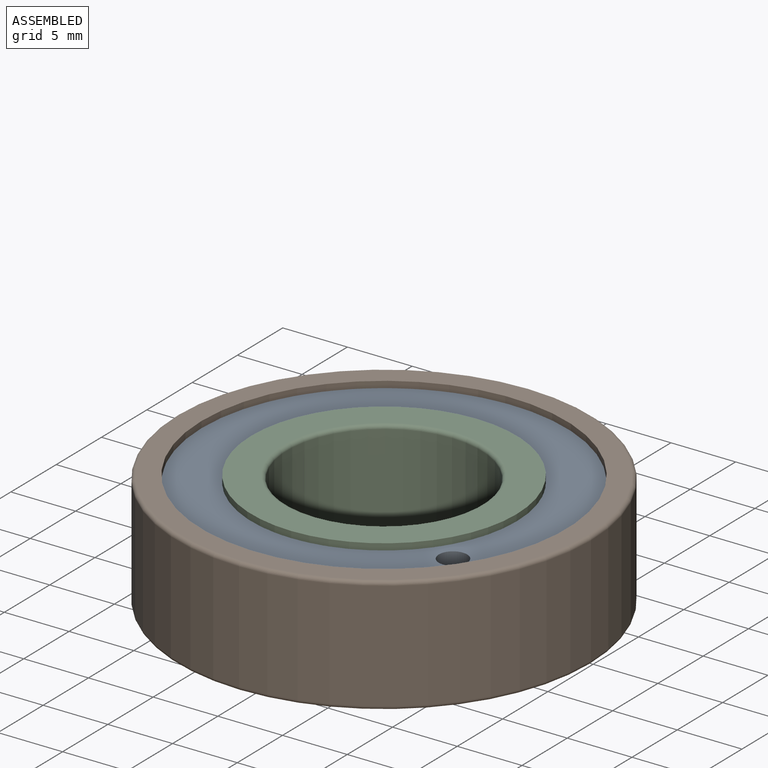
[diagram: assembled view]
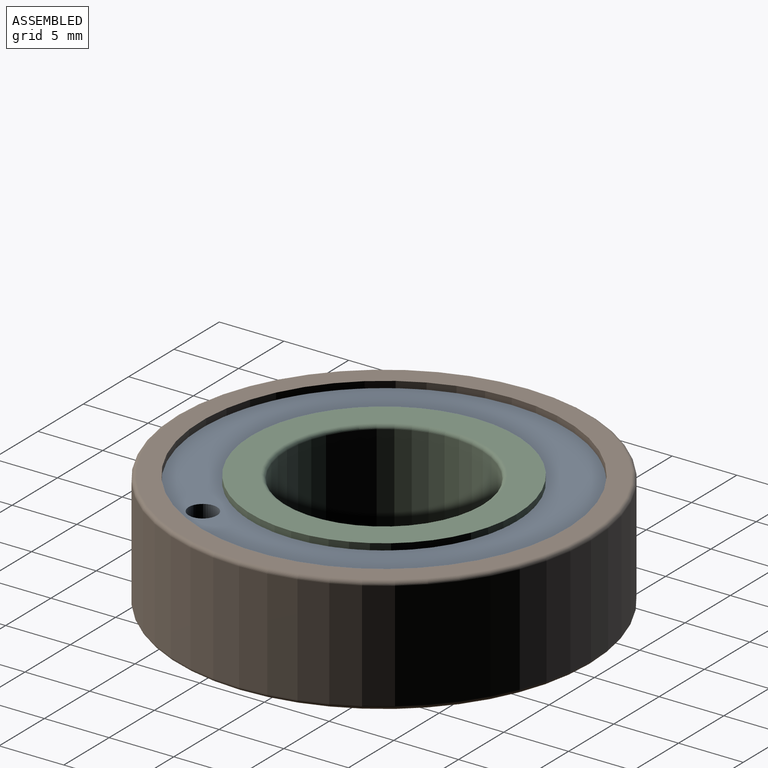
[diagram: assembled view, second angle]
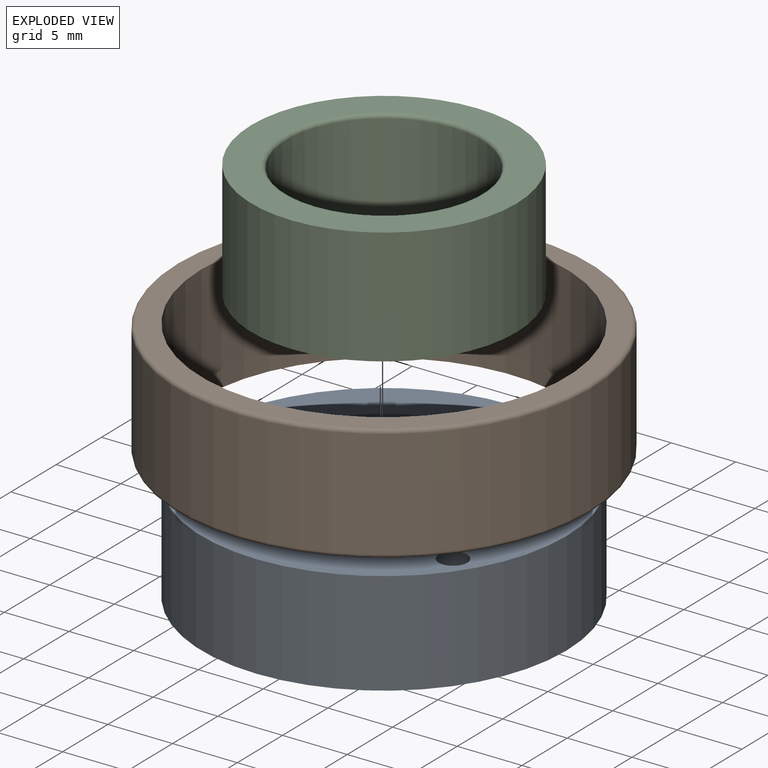
[diagram: exploded view]
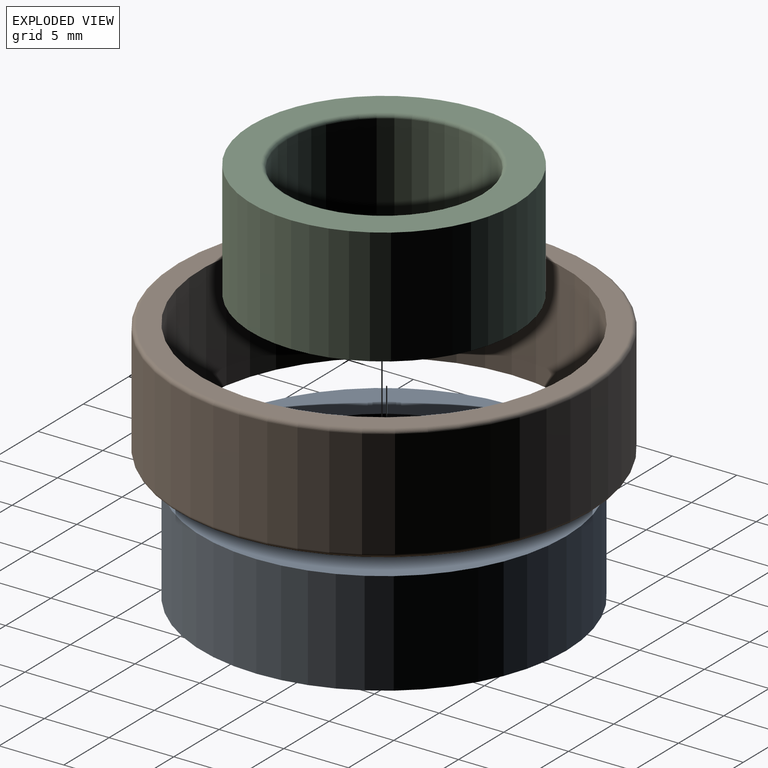
[diagram: exploded view, second angle]
ASSEMBLY  parts=3 mates=2
PART A: 5 faces, bbox 28.2x28.2x8 mm
  f0: cylinder r=10.25mm len=20.5mm, axis (0,0,-1), area 515.2mm2, adj f2,f3
  f1: cylinder r=14.1mm len=28.2mm, axis (0,0,-1), area 708.7mm2, adj f2,f3
  f2: plane 28.2x28.2mm, normal (0,0,1), area 290.8mm2, adj f0,f1,f4
  f3: plane 28.2x28.2mm, normal (0,0,-1), area 290.8mm2, adj f0,f1,f4
  f4: cylinder r=1.09mm len=8mm, axis (0,0,1), area 55mm2, adj f2,f3
PART B: 6 faces, bbox 34.6x34.6x9 mm
  f0: cylinder r=14.1mm len=28.2mm, axis (0,0,-1), area 797.3mm2, adj f2,f3
  f1: cylinder r=16mm len=32mm, axis (0,0,-1), area 844.5mm2, adj f4,f5
  f2: plane 31.4x31.4mm, normal (0,0,1), area 149.8mm2, adj f0,f5
  f3: plane 31.4x31.4mm, normal (0,0,-1), area 149.8mm2, adj f0,f4
  f4: torus R=15.7mm, axis (0,0,1), area 47.1mm2, adj f1,f3
  f5: torus R=15.7mm, axis (0,0,1), area 47.1mm2, adj f1,f2
PART C: 6 faces, bbox 20.5x20.5x9 mm
  f0: cylinder r=7.5mm len=15mm, axis (0,0,-1), area 395.8mm2, adj f4,f5
  f1: cylinder r=10.25mm len=20.5mm, axis (0,0,-1), area 579.6mm2, adj f2,f3
  f2: plane 20.5x20.5mm, normal (0,0,1), area 138.9mm2, adj f1,f4
  f3: plane 20.5x20.5mm, normal (0,0,-1), area 138.9mm2, adj f1,f5
  f4: torus R=7.8mm, axis (0,0,1), area 22.5mm2, adj f0,f2
  f5: torus R=7.8mm, axis (0,0,1), area 22.5mm2, adj f0,f3
PLACE A rot(axis=(0,0,1),180deg) t=(19.81,38.61,31.46)mm
PLACE B rot(axis=(0,0,1),180deg) t=(19.81,38.61,30.96)mm
PLACE C rot(axis=(0,0,-1),90deg) t=(20.06,39.1,30.96)mm fixed
MATE revolute C.f0 <-> A.f1  axis (0,0,-1) through (19.81,38.61,35.46)mm
MATE revolute B.f1 <-> A.f1  axis (0,0,-1) through (19.81,38.61,35.46)mm
